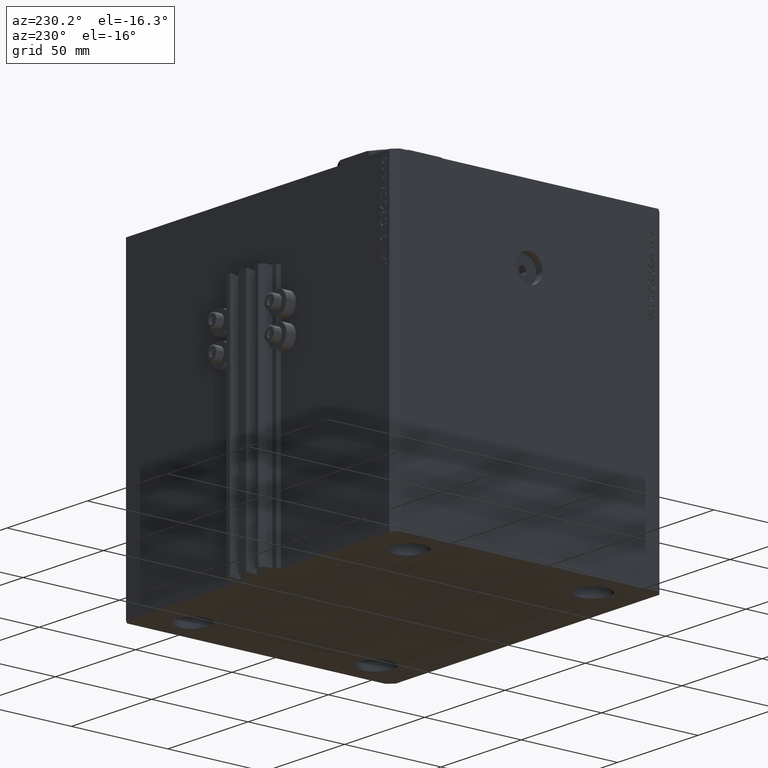
[diagram: clean part render]
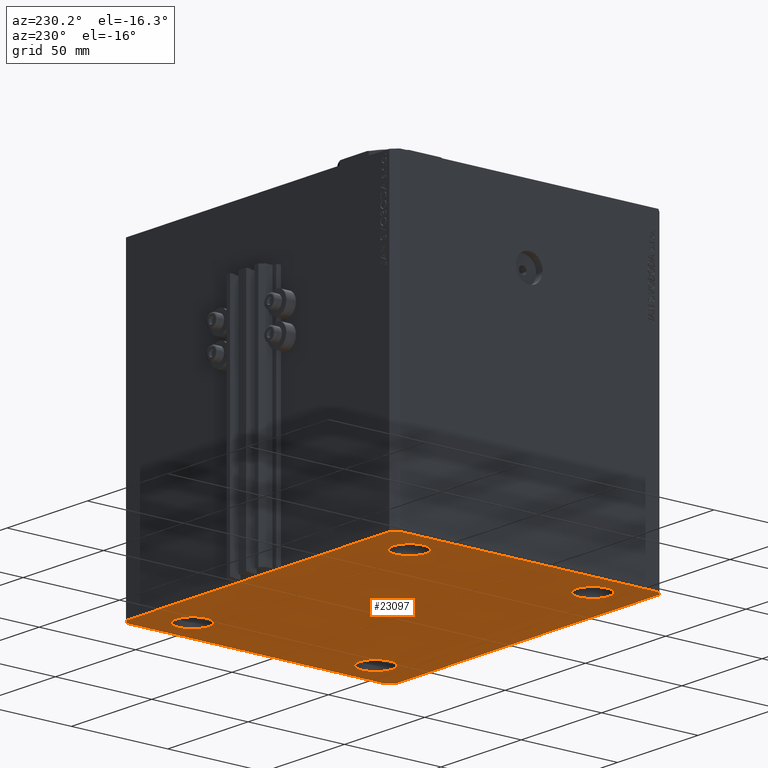
[diagram: same view with one face highlighted and labeled with its STEP entity id]
A machine part, auxiliary view. The second image highlights one B-rep face of the part: STEP entity #23097.
In plain terms, the highlighted planar face has unit normal (0, 0, 1).
Its self-contained STEP definition (entity closure, byte-faithful):
#190 = EDGE_CURVE ( 'NONE', #33456, #29284, #15835, .T. ) ;
#1009 = CARTESIAN_POINT ( 'NONE',  ( -82.00000000000000000, 70.00000000000000000, -159.0000000000000000 ) ) ;
#1604 = CARTESIAN_POINT ( 'NONE',  ( 85.00000000000052580, 66.99999999999995737, -159.0000000000000000 ) ) ;
#1830 = DIRECTION ( 'NONE',  ( 3.728360903591945148E-15, 1.000000000000000000, 0.000000000000000000 ) ) ;
#2626 = VERTEX_POINT ( 'NONE', #37668 ) ;
#2858 = EDGE_LOOP ( 'NONE', ( #15886, #30046 ) ) ;
#4090 = CARTESIAN_POINT ( 'NONE',  ( 59.00000000000000000, 47.49999999999999289, -159.0000000000000000 ) ) ;
#4121 = CARTESIAN_POINT ( 'NONE',  ( -82.00000000000000000, 70.00000000000000000, -159.0000000000000000 ) ) ;
#4141 = DIRECTION ( 'NONE',  ( -0.000000000000000000, -0.000000000000000000, -1.000000000000000000 ) ) ;
#4666 = ORIENTED_EDGE ( 'NONE', *, *, #32334, .F. ) ;
#5077 = DIRECTION ( 'NONE',  ( -0.000000000000000000, -0.000000000000000000, -1.000000000000000000 ) ) ;
#5213 = AXIS2_PLACEMENT_3D ( 'NONE', #12808, #5644, #20213 ) ;
#5621 = EDGE_LOOP ( 'NONE', ( #4666, #22719 ) ) ;
#5644 = DIRECTION ( 'NONE',  ( -0.000000000000000000, -0.000000000000000000, -1.000000000000000000 ) ) ;
#5880 = LINE ( 'NONE', #6361, #35796 ) ;
#6205 = ORIENTED_EDGE ( 'NONE', *, *, #7187, .F. ) ;
#6361 = CARTESIAN_POINT ( 'NONE',  ( 85.00000000000001421, -67.00000000000000000, -159.0000000000000000 ) ) ;
#7149 = DIRECTION ( 'NONE',  ( 1.000000000000000000, 0.000000000000000000, 0.000000000000000000 ) ) ;
#7187 = EDGE_CURVE ( 'NONE', #10148, #33456, #17802, .T. ) ;
#7770 = ORIENTED_EDGE ( 'NONE', *, *, #10300, .F. ) ;
#7805 = VECTOR ( 'NONE', #25664, 1000.000000000000000 ) ;
#8479 = EDGE_CURVE ( 'NONE', #24592, #29719, #14683, .T. ) ;
#8680 = CARTESIAN_POINT ( 'NONE',  ( -67.50000000000000000, 47.50000000000000000, -159.0000000000000000 ) ) ;
#8948 = ORIENTED_EDGE ( 'NONE', *, *, #25267, .F. ) ;
#9177 = CIRCLE ( 'NONE', #37388, 8.500000000000007105 ) ;
#9428 = DIRECTION ( 'NONE',  ( 1.000000000000000000, 0.000000000000000000, 0.000000000000000000 ) ) ;
#9652 = CARTESIAN_POINT ( 'NONE',  ( 67.49999999999998579, -47.50000000000001421, -159.0000000000000000 ) ) ;
#9711 = AXIS2_PLACEMENT_3D ( 'NONE', #24149, #10071, #21275 ) ;
#9790 = EDGE_LOOP ( 'NONE', ( #46251, #7770, #42014, #23560, #44941, #32511, #6205, #31772 ) ) ;
#10071 = DIRECTION ( 'NONE',  ( -0.000000000000000000, -0.000000000000000000, -1.000000000000000000 ) ) ;
#10148 = VERTEX_POINT ( 'NONE', #25604 ) ;
#10300 = EDGE_CURVE ( 'NONE', #37137, #21997, #11753, .T. ) ;
#11207 = FACE_BOUND ( 'NONE', #2858, .T. ) ;
#11446 = DIRECTION ( 'NONE',  ( 0.000000000000000000, 0.000000000000000000, 1.000000000000000000 ) ) ;
#11563 = CARTESIAN_POINT ( 'NONE',  ( -67.49999999999998579, -47.50000000000001421, -159.0000000000000000 ) ) ;
#11753 = LINE ( 'NONE', #44673, #43564 ) ;
#12205 = LINE ( 'NONE', #41319, #43509 ) ;
#12575 = EDGE_CURVE ( 'NONE', #34772, #20393, #45260, .T. ) ;
#12808 = CARTESIAN_POINT ( 'NONE',  ( -67.50000000000000000, 47.50000000000000000, -159.0000000000000000 ) ) ;
#13917 = FACE_BOUND ( 'NONE', #24468, .T. ) ;
#14683 = CIRCLE ( 'NONE', #35256, 8.499999999999992895 ) ;
#15835 = LINE ( 'NONE', #34430, #37300 ) ;
#15886 = ORIENTED_EDGE ( 'NONE', *, *, #8479, .F. ) ;
#16064 = DIRECTION ( 'NONE',  ( 1.000000000000000000, 0.000000000000000000, 0.000000000000000000 ) ) ;
#16307 = DIRECTION ( 'NONE',  ( 0.7071067811865474617, -0.7071067811865474617, 0.000000000000000000 ) ) ;
#16413 = DIRECTION ( 'NONE',  ( -0.000000000000000000, -0.000000000000000000, -1.000000000000000000 ) ) ;
#17054 = DIRECTION ( 'NONE',  ( -0.000000000000000000, -0.000000000000000000, -1.000000000000000000 ) ) ;
#17244 = LINE ( 'NONE', #36085, #20528 ) ;
#17802 = LINE ( 'NONE', #47132, #7805 ) ;
#18286 = CARTESIAN_POINT ( 'NONE',  ( 67.50000000000000000, 47.49999999999999289, -159.0000000000000000 ) ) ;
#18612 = CARTESIAN_POINT ( 'NONE',  ( 0.000000000000000000, 0.000000000000000000, -159.0000000000000000 ) ) ;
#19086 = CIRCLE ( 'NONE', #31279, 8.499999999999992895 ) ;
#19157 = CIRCLE ( 'NONE', #26786, 8.499999999999992895 ) ;
#19413 = LINE ( 'NONE', #4121, #24362 ) ;
#19998 = CARTESIAN_POINT ( 'NONE',  ( 67.50000000000000000, 47.49999999999999289, -159.0000000000000000 ) ) ;
#20213 = DIRECTION ( 'NONE',  ( 1.000000000000000000, 0.000000000000000000, 0.000000000000000000 ) ) ;
#20332 = CARTESIAN_POINT ( 'NONE',  ( 85.00000000000001421, -67.00000000000000000, -159.0000000000000000 ) ) ;
#20393 = VERTEX_POINT ( 'NONE', #47061 ) ;
#20528 = VECTOR ( 'NONE', #21066, 1000.000000000000000 ) ;
#21066 = DIRECTION ( 'NONE',  ( 1.000000000000000000, 0.000000000000000000, 0.000000000000000000 ) ) ;
#21275 = DIRECTION ( 'NONE',  ( 1.000000000000000000, 0.000000000000000000, 0.000000000000000000 ) ) ;
#21997 = VERTEX_POINT ( 'NONE', #42804 ) ;
#22243 = VERTEX_POINT ( 'NONE', #31060 ) ;
#22436 = FACE_BOUND ( 'NONE', #38823, .T. ) ;
#22719 = ORIENTED_EDGE ( 'NONE', *, *, #47043, .F. ) ;
#22778 = CIRCLE ( 'NONE', #9711, 8.499999999999992895 ) ;
#22999 = DIRECTION ( 'NONE',  ( -0.7071067811865507924, -0.7071067811865441310, 0.000000000000000000 ) ) ;
#23097 = ADVANCED_FACE ( 'NONE', ( #13917, #11207, #28487, #22436, #43024 ), #25766, .F. ) ;
#23520 = EDGE_CURVE ( 'NONE', #22243, #26318, #31105, .T. ) ;
#23560 = ORIENTED_EDGE ( 'NONE', *, *, #30079, .F. ) ;
#23813 = DIRECTION ( 'NONE',  ( 1.000000000000000000, 0.000000000000000000, 0.000000000000000000 ) ) ;
#24149 = CARTESIAN_POINT ( 'NONE',  ( -67.49999999999998579, -47.50000000000001421, -159.0000000000000000 ) ) ;
#24362 = VECTOR ( 'NONE', #22999, 1000.000000000000114 ) ;
#24468 = EDGE_LOOP ( 'NONE', ( #8948, #42436 ) ) ;
#24592 = VERTEX_POINT ( 'NONE', #28328 ) ;
#25267 = EDGE_CURVE ( 'NONE', #20393, #34772, #22778, .T. ) ;
#25433 = AXIS2_PLACEMENT_3D ( 'NONE', #11563, #4141, #25644 ) ;
#25467 = CARTESIAN_POINT ( 'NONE',  ( -85.00000000000000000, -67.00000000000000000, -159.0000000000000000 ) ) ;
#25604 = CARTESIAN_POINT ( 'NONE',  ( -85.00000000000001421, 67.00000000000001421, -159.0000000000000000 ) ) ;
#25644 = DIRECTION ( 'NONE',  ( 1.000000000000000000, 0.000000000000000000, 0.000000000000000000 ) ) ;
#25664 = DIRECTION ( 'NONE',  ( 1.035655806553317576E-16, -1.000000000000000000, 0.000000000000000000 ) ) ;
#25766 = PLANE ( 'NONE',  #37164 ) ;
#26302 = CARTESIAN_POINT ( 'NONE',  ( -76.00000000000000000, 47.50000000000000000, -159.0000000000000000 ) ) ;
#26318 = VERTEX_POINT ( 'NONE', #26302 ) ;
#26469 = DIRECTION ( 'NONE',  ( -0.000000000000000000, -0.000000000000000000, -1.000000000000000000 ) ) ;
#26786 = AXIS2_PLACEMENT_3D ( 'NONE', #8680, #5077, #16064 ) ;
#28304 = VECTOR ( 'NONE', #47001, 1000.000000000000000 ) ;
#28328 = CARTESIAN_POINT ( 'NONE',  ( 75.99999999999998579, -47.50000000000001421, -159.0000000000000000 ) ) ;
#28487 = FACE_BOUND ( 'NONE', #5621, .T. ) ;
#29113 = CIRCLE ( 'NONE', #38991, 8.500000000000007105 ) ;
#29284 = VERTEX_POINT ( 'NONE', #31450 ) ;
#29719 = VERTEX_POINT ( 'NONE', #43300 ) ;
#30046 = ORIENTED_EDGE ( 'NONE', *, *, #43125, .F. ) ;
#30079 = EDGE_CURVE ( 'NONE', #2626, #31855, #12205, .T. ) ;
#30922 = VERTEX_POINT ( 'NONE', #4090 ) ;
#31046 = EDGE_CURVE ( 'NONE', #21997, #34248, #32921, .T. ) ;
#31060 = CARTESIAN_POINT ( 'NONE',  ( -59.00000000000001421, 47.50000000000000000, -159.0000000000000000 ) ) ;
#31105 = CIRCLE ( 'NONE', #5213, 8.499999999999992895 ) ;
#31279 = AXIS2_PLACEMENT_3D ( 'NONE', #44602, #26469, #7149 ) ;
#31450 = CARTESIAN_POINT ( 'NONE',  ( -82.00000000000000000, -70.00000000000000000, -159.0000000000000000 ) ) ;
#31772 = ORIENTED_EDGE ( 'NONE', *, *, #36910, .F. ) ;
#31855 = VERTEX_POINT ( 'NONE', #20332 ) ;
#32334 = EDGE_CURVE ( 'NONE', #35541, #30922, #9177, .T. ) ;
#32340 = ORIENTED_EDGE ( 'NONE', *, *, #34990, .F. ) ;
#32447 = CARTESIAN_POINT ( 'NONE',  ( 82.00000000000056843, 70.00000000000000000, -159.0000000000000000 ) ) ;
#32511 = ORIENTED_EDGE ( 'NONE', *, *, #190, .F. ) ;
#32597 = DIRECTION ( 'NONE',  ( -0.000000000000000000, -0.000000000000000000, -1.000000000000000000 ) ) ;
#32899 = CARTESIAN_POINT ( 'NONE',  ( 76.00000000000001421, 47.49999999999999289, -159.0000000000000000 ) ) ;
#32921 = LINE ( 'NONE', #32447, #28304 ) ;
#33050 = ORIENTED_EDGE ( 'NONE', *, *, #23520, .F. ) ;
#33456 = VERTEX_POINT ( 'NONE', #25467 ) ;
#34248 = VERTEX_POINT ( 'NONE', #1009 ) ;
#34430 = CARTESIAN_POINT ( 'NONE',  ( -85.00000000000000000, -67.00000000000000000, -159.0000000000000000 ) ) ;
#34772 = VERTEX_POINT ( 'NONE', #44814 ) ;
#34990 = EDGE_CURVE ( 'NONE', #26318, #22243, #19157, .T. ) ;
#35256 = AXIS2_PLACEMENT_3D ( 'NONE', #9652, #17054, #9428 ) ;
#35541 = VERTEX_POINT ( 'NONE', #32899 ) ;
#35796 = VECTOR ( 'NONE', #1830, 1000.000000000000000 ) ;
#36085 = CARTESIAN_POINT ( 'NONE',  ( -82.00000000000000000, -70.00000000000000000, -159.0000000000000000 ) ) ;
#36465 = EDGE_CURVE ( 'NONE', #31855, #37137, #5880, .T. ) ;
#36747 = DIRECTION ( 'NONE',  ( 1.000000000000000000, 0.000000000000000000, -0.000000000000000000 ) ) ;
#36910 = EDGE_CURVE ( 'NONE', #34248, #10148, #19413, .T. ) ;
#37137 = VERTEX_POINT ( 'NONE', #1604 ) ;
#37164 = AXIS2_PLACEMENT_3D ( 'NONE', #18612, #11446, #36747 ) ;
#37300 = VECTOR ( 'NONE', #16307, 1000.000000000000114 ) ;
#37388 = AXIS2_PLACEMENT_3D ( 'NONE', #18286, #32597, #40239 ) ;
#37668 = CARTESIAN_POINT ( 'NONE',  ( 82.00000000000001421, -70.00000000000000000, -159.0000000000000000 ) ) ;
#38823 = EDGE_LOOP ( 'NONE', ( #33050, #32340 ) ) ;
#38991 = AXIS2_PLACEMENT_3D ( 'NONE', #19998, #16413, #23813 ) ;
#40239 = DIRECTION ( 'NONE',  ( 1.000000000000000000, 0.000000000000000000, 0.000000000000000000 ) ) ;
#41319 = CARTESIAN_POINT ( 'NONE',  ( 82.00000000000001421, -70.00000000000000000, -159.0000000000000000 ) ) ;
#41676 = EDGE_CURVE ( 'NONE', #29284, #2626, #17244, .T. ) ;
#42014 = ORIENTED_EDGE ( 'NONE', *, *, #36465, .F. ) ;
#42436 = ORIENTED_EDGE ( 'NONE', *, *, #12575, .F. ) ;
#42804 = CARTESIAN_POINT ( 'NONE',  ( 82.00000000000056843, 70.00000000000000000, -159.0000000000000000 ) ) ;
#43024 = FACE_OUTER_BOUND ( 'NONE', #9790, .T. ) ;
#43125 = EDGE_CURVE ( 'NONE', #29719, #24592, #19086, .T. ) ;
#43300 = CARTESIAN_POINT ( 'NONE',  ( 59.00000000000000000, -47.50000000000001421, -159.0000000000000000 ) ) ;
#43509 = VECTOR ( 'NONE', #43951, 1000.000000000000114 ) ;
#43564 = VECTOR ( 'NONE', #44203, 1000.000000000000114 ) ;
#43951 = DIRECTION ( 'NONE',  ( 0.7071067811865474617, 0.7071067811865474617, 0.000000000000000000 ) ) ;
#44203 = DIRECTION ( 'NONE',  ( -0.7071067811865361374, 0.7071067811865588970, 0.000000000000000000 ) ) ;
#44602 = CARTESIAN_POINT ( 'NONE',  ( 67.49999999999998579, -47.50000000000001421, -159.0000000000000000 ) ) ;
#44673 = CARTESIAN_POINT ( 'NONE',  ( 85.00000000000052580, 66.99999999999995737, -159.0000000000000000 ) ) ;
#44814 = CARTESIAN_POINT ( 'NONE',  ( -75.99999999999998579, -47.50000000000001421, -159.0000000000000000 ) ) ;
#44941 = ORIENTED_EDGE ( 'NONE', *, *, #41676, .F. ) ;
#45260 = CIRCLE ( 'NONE', #25433, 8.499999999999992895 ) ;
#46251 = ORIENTED_EDGE ( 'NONE', *, *, #31046, .F. ) ;
#47001 = DIRECTION ( 'NONE',  ( -1.000000000000000000, 0.000000000000000000, 0.000000000000000000 ) ) ;
#47043 = EDGE_CURVE ( 'NONE', #30922, #35541, #29113, .T. ) ;
#47061 = CARTESIAN_POINT ( 'NONE',  ( -59.00000000000000000, -47.50000000000001421, -159.0000000000000000 ) ) ;
#47132 = CARTESIAN_POINT ( 'NONE',  ( -85.00000000000001421, 67.00000000000001421, -159.0000000000000000 ) ) ;